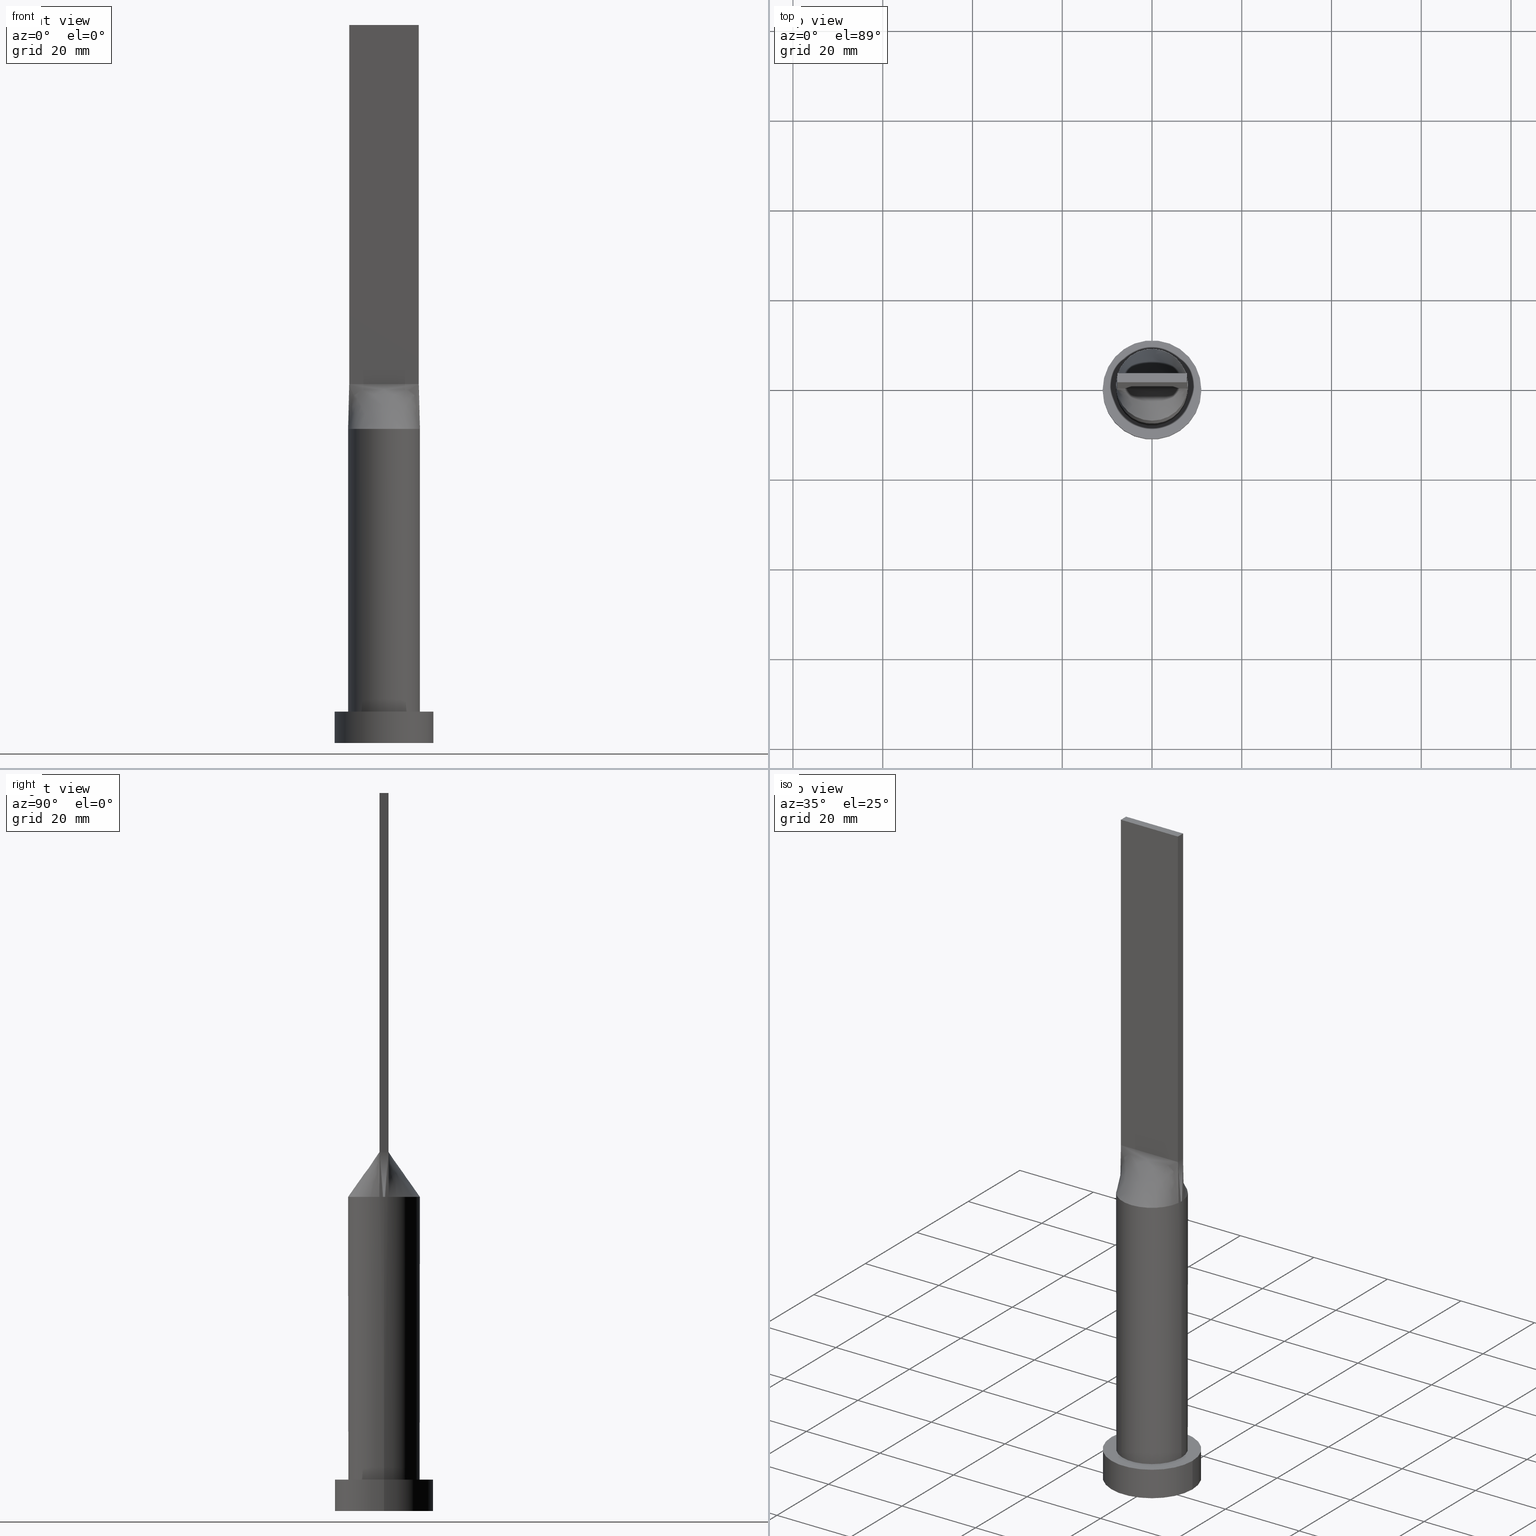
[diagram: canonical four-view strip — front | top / right | iso, engineering-drawing reading convention]
A machine part, canonical four-view strip (front | top / right | iso — engineering-drawing reading convention). The complete STEP part file that produces these views, byte-faithful:
ISO-10303-21;
HEADER;
FILE_DESCRIPTION (( 'STEP AP203' ),
    '1' );
FILE_NAME ('1e7d.STEP',
    '2023-02-13T08:33:03',
    ( '' ),
    ( '' ),
    'SwSTEP 2.0',
    'SolidWorks 2019',
    '' );
FILE_SCHEMA (( 'CONFIG_CONTROL_DESIGN' ));
ENDSEC;

DATA;
#1 = EDGE_LOOP ( 'NONE', ( #609, #271 ) ) ;
#2 = VERTEX_POINT ( 'NONE', #140 ) ;
#3 = CARTESIAN_POINT ( 'NONE',  ( 4.520833333333332149, -0.9999999999999995559, 79.99999999999998579 ) ) ;
#4 = CARTESIAN_POINT ( 'NONE',  ( 7.104166666666666963, 1.000000000000000000, 79.99999999999998579 ) ) ;
#5 = ORIENTED_EDGE ( 'NONE', *, *, #558, .T. ) ;
#6 = ORIENTED_EDGE ( 'NONE', *, *, #456, .T. ) ;
#7 = VERTEX_POINT ( 'NONE', #290 ) ;
#8 = CARTESIAN_POINT ( 'NONE',  ( 7.750000000000000000, -0.9999999999999997780, 80.00000000000000000 ) ) ;
#9 = CARTESIAN_POINT ( 'NONE',  ( -0.5861720261543129640, 7.999999999999998224, 69.99999999999998579 ) ) ;
#10 = DIRECTION ( 'NONE',  ( 6.994852725712931474E-17, 1.000000000000000000, -0.000000000000000000 ) ) ;
#11 = EDGE_CURVE ( 'NONE', #511, #586, #484, .T. ) ;
#12 = CARTESIAN_POINT ( 'NONE',  ( -7.849610172922081297, 1.679519592204999023, 70.00000000000000000 ) ) ;
#13 = DIRECTION ( 'NONE',  ( -0.000000000000000000, -0.000000000000000000, -1.000000000000000000 ) ) ;
#14 = DIRECTION ( 'NONE',  ( -1.000000000000000000, 0.000000000000000000, 0.000000000000000000 ) ) ;
#15 = CARTESIAN_POINT ( 'NONE',  ( 2.847317194822259534, 7.497028652483948008, 70.00000000000000000 ) ) ;
#16 = ORIENTED_EDGE ( 'NONE', *, *, #266, .F. ) ;
#17 = CARTESIAN_POINT ( 'NONE',  ( -7.750000000000000000, 1.000000000000000000, 160.0000000000000000 ) ) ;
#18 = CARTESIAN_POINT ( 'NONE',  ( 7.192469010134847629, 3.526369025759696907, 70.00000000000000000 ) ) ;
#19 = AXIS2_PLACEMENT_3D ( 'NONE', #444, #327, #467 ) ;
#20 = VERTEX_POINT ( 'NONE', #212 ) ;
#21 = CARTESIAN_POINT ( 'NONE',  ( -11.00000000000000000, 0.000000000000000000, 7.000000000000000000 ) ) ;
#22 = CARTESIAN_POINT ( 'NONE',  ( 6.994548530637815453, 3.908833842696238570, 70.00000000000002842 ) ) ;
#23 = EDGE_CURVE ( 'NONE', #250, #640, #312, .T. ) ;
#24 = PLANE ( 'NONE',  #99 ) ;
#25 = CARTESIAN_POINT ( 'NONE',  ( 7.750000000000000000, 0.6666666666666669627, 79.99999999999998579 ) ) ;
#26 = CYLINDRICAL_SURFACE ( 'NONE', #80, 11.00000000000000000 ) ;
#27 = AXIS2_PLACEMENT_3D ( 'NONE', #595, #336, #294 ) ;
#28 = ADVANCED_FACE ( 'NONE', ( #488 ), #26, .T. ) ;
#29 = LINE ( 'NONE', #265, #113 ) ;
#30 = FACE_OUTER_BOUND ( 'NONE', #422, .T. ) ;
#31 = AXIS2_PLACEMENT_3D ( 'NONE', #76, #222, #275 ) ;
#32 = APPLICATION_PROTOCOL_DEFINITION ( 'international standard', 'config_control_design', 1994, #162 ) ;
#33 = CARTESIAN_POINT ( 'NONE',  ( 7.750000000000000000, 1.000000000000000000, 160.0000000000000000 ) ) ;
#34 = ADVANCED_FACE ( 'NONE', ( #635 ), #202, .T. ) ;
#35 = DIRECTION ( 'NONE',  ( 1.000000000000000000, 0.000000000000000000, 0.000000000000000000 ) ) ;
#36 = CARTESIAN_POINT ( 'NONE',  ( -7.192469010134850294, -3.526369025759695131, 70.00000000000000000 ) ) ;
#37 = CC_DESIGN_PERSON_AND_ORGANIZATION_ASSIGNMENT ( #630, #141, ( #159 ) ) ;
#38 = DIRECTION ( 'NONE',  ( -0.000000000000000000, -0.000000000000000000, -1.000000000000000000 ) ) ;
#39 = VECTOR ( 'NONE', #87, 1000.000000000000000 ) ;
#40 = DIRECTION ( 'NONE',  ( -0.000000000000000000, -0.000000000000000000, -1.000000000000000000 ) ) ;
#41 = CIRCLE ( 'NONE', #279, 8.000000000000000000 ) ;
#42 = CALENDAR_DATE ( 2023, 13, 2 ) ;
#43 = CARTESIAN_POINT ( 'NONE',  ( -8.000000000000000000, 0.000000000000000000, 70.00000000000000000 ) ) ;
#44 = DATE_TIME_ROLE ( 'classification_date' ) ;
#45 = EDGE_CURVE ( 'NONE', #508, #52, #146, .T. ) ;
#46 = ORIENTED_EDGE ( 'NONE', *, *, #400, .T. ) ;
#47 = CARTESIAN_POINT ( 'NONE',  ( -7.675166908885238115, -2.399868494543664799, 69.99999999999998579 ) ) ;
#48 = DIRECTION ( 'NONE',  ( 1.000000000000000000, 0.000000000000000000, 0.000000000000000000 ) ) ;
#49 = ORIENTED_EDGE ( 'NONE', *, *, #139, .T. ) ;
#50 = AXIS2_PLACEMENT_3D ( 'NONE', #562, #13, #371 ) ;
#51 = CARTESIAN_POINT ( 'NONE',  ( -2.583333333333335258, -0.9999999999999988898, 80.00000000000000000 ) ) ;
#52 = VERTEX_POINT ( 'NONE', #310 ) ;
#53 = B_SPLINE_SURFACE_WITH_KNOTS ( 'NONE', 3, 1, ( 
 ( #179, #274 ),
 ( #323, #513 ),
 ( #516, #605 ),
 ( #74, #614 ),
 ( #568, #25 ),
 ( #71, #468 ) ),
 .UNSPECIFIED., .F., .F., .F.,
 ( 4, 2, 4 ),
 ( 2, 2 ),
 ( 0.000000000000000000, 0.5000000000000000000, 1.000000000000000000 ),
 ( 0.000000000000000000, 1.000000000000000000 ),
 .UNSPECIFIED. ) ;
#54 = CARTESIAN_POINT ( 'NONE',  ( -3.552083333333332593, 1.000000000000000000, 80.00000000000001421 ) ) ;
#55 = CARTESIAN_POINT ( 'NONE',  ( 5.489583333333333925, -0.9999999999999995559, 79.99999999999998579 ) ) ;
#56 = CARTESIAN_POINT ( 'NONE',  ( -3.862537548001455878, 7.028047916340264045, 70.00000000000000000 ) ) ;
#57 = EDGE_LOOP ( 'NONE', ( #264, #348, #554, #95 ) ) ;
#58 = B_SPLINE_SURFACE_WITH_KNOTS ( 'NONE', 3, 1, ( 
 ( #233, #432 ),
 ( #620, #185 ),
 ( #379, #569 ),
 ( #131, #332 ),
 ( #524, #83 ),
 ( #462, #337 ) ),
 .UNSPECIFIED., .F., .F., .F.,
 ( 4, 2, 4 ),
 ( 2, 2 ),
 ( 0.000000000000000000, 0.5000000000000000000, 1.000000000000000000 ),
 ( 0.000000000000000000, 1.000000000000000000 ),
 .UNSPECIFIED. ) ;
#59 = CARTESIAN_POINT ( 'NONE',  ( -2.847317194822263531, -7.497028652483947120, 69.99999999999998579 ) ) ;
#60 = CARTESIAN_POINT ( 'NONE',  ( 3.229166666666668295, 1.000000000000000000, 80.00000000000001421 ) ) ;
#61 = ORIENTED_EDGE ( 'NONE', *, *, #229, .F. ) ;
#62 = ADVANCED_FACE ( 'NONE', ( #249 ), #152, .T. ) ;
#63 = PLANE ( 'NONE',  #421 ) ;
#64 = CIRCLE ( 'NONE', #84, 11.00000000000000000 ) ;
#65 = CARTESIAN_POINT ( 'NONE',  ( -0.3229166666666646868, 1.000000000000000000, 79.99999999999998579 ) ) ;
#66 = LINE ( 'NONE', #219, #408 ) ;
#67 = CARTESIAN_POINT ( 'NONE',  ( 4.333237558274722900, 6.745559271922132893, 70.00000000000001421 ) ) ;
#68 = ORIENTED_EDGE ( 'NONE', *, *, #520, .F. ) ;
#69 = LINE ( 'NONE', #226, #626 ) ;
#70 = UNCERTAINTY_MEASURE_WITH_UNIT (LENGTH_MEASURE( 1.000000000000000082E-05 ), #527, 'distance_accuracy_value', 'NONE');
#71 = CARTESIAN_POINT ( 'NONE',  ( 7.934222933072200945, 1.023770701041573084, 70.00000000000000000 ) ) ;
#72 = ORIENTED_EDGE ( 'NONE', *, *, #392, .F. ) ;
#73 = DIRECTION ( 'NONE',  ( 0.000000000000000000, 0.000000000000000000, 1.000000000000000000 ) ) ;
#74 = CARTESIAN_POINT ( 'NONE',  ( 7.999729586091648414, 0.3426598302205475788, 70.00000000000000000 ) ) ;
#75 = EDGE_CURVE ( 'NONE', #536, #163, #268, .T. ) ;
#76 = CARTESIAN_POINT ( 'NONE',  ( 7.750000000000000000, -0.9999999999999997780, 160.0000000000000000 ) ) ;
#77 = CARTESIAN_POINT ( 'NONE',  ( -6.226863775955933100, 5.046530946333157353, 70.00000000000001421 ) ) ;
#78 = CARTESIAN_POINT ( 'NONE',  ( -7.934264564332944580, 1.023776086464161406, 70.00000000000000000 ) ) ;
#79 = DIRECTION ( 'NONE',  ( 0.000000000000000000, -1.000000000000000000, 0.000000000000000000 ) ) ;
#80 = AXIS2_PLACEMENT_3D ( 'NONE', #377, #173, #14 ) ;
#81 = DATE_AND_TIME ( #523, #397 ) ;
#82 = ADVANCED_FACE ( 'NONE', ( #522 ), #53, .T. ) ;
#83 = CARTESIAN_POINT ( 'NONE',  ( -7.750000000000000000, -0.6666666666666652974, 79.99999999999998579 ) ) ;
#84 = AXIS2_PLACEMENT_3D ( 'NONE', #189, #533, #632 ) ;
#85 = COORDINATED_UNIVERSAL_TIME_OFFSET ( 1, 0, .AHEAD. ) ;
#86 = CARTESIAN_POINT ( 'NONE',  ( 7.750000000000000000, 1.000000000000000000, 80.00000000000000000 ) ) ;
#87 = DIRECTION ( 'NONE',  ( -0.000000000000000000, -0.000000000000000000, -1.000000000000000000 ) ) ;
#88 = LINE ( 'NONE', #287, #506 ) ;
#89 = EDGE_CURVE ( 'NONE', #52, #486, #125, .T. ) ;
#90 = PERSON_AND_ORGANIZATION ( #151, #507 ) ;
#91 = CARTESIAN_POINT ( 'NONE',  ( -7.934222933072202721, -1.023770701041571973, 70.00000000000000000 ) ) ;
#92 = APPROVAL ( #394, 'NEUR�EN�' ) ;
#93 = DIRECTION ( 'NONE',  ( 0.000000000000000000, 0.000000000000000000, 1.000000000000000000 ) ) ;
#94 = CARTESIAN_POINT ( 'NONE',  ( 2.302877821226934074, -7.683241396761609998, 70.00000000000001421 ) ) ;
#95 = ORIENTED_EDGE ( 'NONE', *, *, #503, .T. ) ;
#96 = EDGE_CURVE ( 'NONE', #640, #596, #499, .T. ) ;
#97 = CARTESIAN_POINT ( 'NONE',  ( 4.333237558274721124, -6.745559271922137334, 70.00000000000001421 ) ) ;
#98 = CARTESIAN_POINT ( 'NONE',  ( -2.302877821226935851, 7.683241396761610886, 70.00000000000001421 ) ) ;
#99 = AXIS2_PLACEMENT_3D ( 'NONE', #515, #73, #428 ) ;
#100 = CARTESIAN_POINT ( 'NONE',  ( -5.562660223239391577, -5.770452176164420521, 70.00000000000004263 ) ) ;
#101 = CARTESIAN_POINT ( 'NONE',  ( 7.849610172922079521, 1.679519592204998801, 70.00000000000000000 ) ) ;
#102 = ORIENTED_EDGE ( 'NONE', *, *, #392, .T. ) ;
#103 = CARTESIAN_POINT ( 'NONE',  ( 0.5861720261543107435, -8.000000000000001776, 70.00000000000004263 ) ) ;
#104 = CARTESIAN_POINT ( 'NONE',  ( 6.226863775955932212, 5.046530946333158241, 70.00000000000002842 ) ) ;
#105 = ADVANCED_FACE ( 'NONE', ( #128 ), #612, .F. ) ;
#106 = B_SPLINE_SURFACE_WITH_KNOTS ( 'NONE', 3, 1, ( 
 ( #91, #479 ),
 ( #487, #236 ),
 ( #47, #381 ),
 ( #36, #237 ),
 ( #435, #251 ),
 ( #355, #498 ),
 ( #601, #398 ),
 ( #100, #345 ),
 ( #406, #597 ),
 ( #309, #51 ),
 ( #261, #210 ),
 ( #59, #200 ),
 ( #296, #637 ),
 ( #539, #585 ),
 ( #593, #447 ),
 ( #103, #546 ),
 ( #154, #313 ),
 ( #94, #495 ),
 ( #589, #149 ),
 ( #160, #165 ),
 ( #97, #300 ),
 ( #541, #491 ),
 ( #248, #349 ),
 ( #246, #410 ),
 ( #449, #3 ),
 ( #255, #168 ),
 ( #305, #55 ),
 ( #352, #639 ),
 ( #452, #549 ),
 ( #401, #8 ) ),
 .UNSPECIFIED., .F., .F., .F.,
 ( 4, 2, 2, 2, 2, 2, 2, 2, 2, 2, 2, 2, 2, 2, 4 ),
 ( 2, 2 ),
 ( 0.000000000000000000, 0.1250000000000000555, 0.1875000000000000555, 0.2500000000000000555, 0.3125000000000000000, 0.3750000000000000000, 0.4374999999999999445, 0.4999999999999999445, 0.5624999999999998890, 0.6249999999999998890, 0.6875000000000000000, 0.7500000000000000000, 0.8125000000000000000, 0.8750000000000000000, 1.000000000000000000 ),
 ( 0.000000000000000000, 1.000000000000000000 ),
 .UNSPECIFIED. ) ;
#107 = CARTESIAN_POINT ( 'NONE',  ( 7.750000000000000000, 1.000000000000000000, 160.0000000000000000 ) ) ;
#108 = CARTESIAN_POINT ( 'NONE',  ( -4.520833333333332149, 1.000000000000000000, 80.00000000000001421 ) ) ;
#109 = CC_DESIGN_PERSON_AND_ORGANIZATION_ASSIGNMENT ( #339, #531, ( #159 ) ) ;
#110 = ORIENTED_EDGE ( 'NONE', *, *, #441, .F. ) ;
#111 = ORIENTED_EDGE ( 'NONE', *, *, #631, .F. ) ;
#112 = FACE_OUTER_BOUND ( 'NONE', #136, .T. ) ;
#113 = VECTOR ( 'NONE', #512, 1000.000000000000114 ) ;
#114 = CARTESIAN_POINT ( 'NONE',  ( 0.000000000000000000, 0.000000000000000000, 7.000000000000000000 ) ) ;
#115 = ORIENTED_EDGE ( 'NONE', *, *, #283, .T. ) ;
#116 = CARTESIAN_POINT ( 'NONE',  ( -7.750000000000000000, -0.9999999999999986677, 160.0000000000000000 ) ) ;
#117 = CARTESIAN_POINT ( 'NONE',  ( 7.934252830235720033, 1.023774570959714802, 70.00000000000000000 ) ) ;
#118 = ORIENTED_EDGE ( 'NONE', *, *, #441, .T. ) ;
#119 = ORIENTED_EDGE ( 'NONE', *, *, #45, .F. ) ;
#120 = LINE ( 'NONE', #184, #475 ) ;
#121 = CARTESIAN_POINT ( 'NONE',  ( -2.302877821226935851, 7.683241396761610886, 70.00000000000001421 ) ) ;
#122 = CIRCLE ( 'NONE', #514, 8.000000000000000000 ) ;
#123 = CARTESIAN_POINT ( 'NONE',  ( -11.00000000000000000, 0.000000000000000000, 0.000000000000000000 ) ) ;
#124 = CIRCLE ( 'NONE', #316, 11.00000000000000000 ) ;
#125 = LINE ( 'NONE', #181, #471 ) ;
#126 = PRODUCT_DEFINITION ( 'NEZN�M�', '', #159, #419 ) ;
#127 = DIRECTION ( 'NONE',  ( -0.000000000000000000, -0.000000000000000000, -1.000000000000000000 ) ) ;
#128 = FACE_OUTER_BOUND ( 'NONE', #191, .T. ) ;
#129 = ADVANCED_FACE ( 'NONE', ( #30 ), #58, .T. ) ;
#130 = PERSON_AND_ORGANIZATION_ROLE ( 'design_owner' ) ;
#131 = CARTESIAN_POINT ( 'NONE',  ( -7.999729586091648414, -0.3426598302205468571, 70.00000000000000000 ) ) ;
#132 = APPROVAL_ROLE ( '' ) ;
#133 = CARTESIAN_POINT ( 'NONE',  ( 0.000000000000000000, 0.000000000000000000, 70.00000000000000000 ) ) ;
#134 = PERSON_AND_ORGANIZATION ( #151, #507 ) ;
#135 = CARTESIAN_POINT ( 'NONE',  ( 0.000000000000000000, 0.000000000000000000, 7.000000000000000000 ) ) ;
#136 = EDGE_LOOP ( 'NONE', ( #308, #404, #204, #221 ) ) ;
#137 = CARTESIAN_POINT ( 'NONE',  ( -8.000000000000000000, 0.000000000000000000, 7.000000000000000000 ) ) ;
#138 = DIRECTION ( 'NONE',  ( 0.000000000000000000, 0.000000000000000000, 1.000000000000000000 ) ) ;
#139 = EDGE_CURVE ( 'NONE', #586, #508, #575, .T. ) ;
#140 = CARTESIAN_POINT ( 'NONE',  ( 8.000000000000000000, 9.797174393178825657E-16, 7.000000000000000000 ) ) ;
#141 = PERSON_AND_ORGANIZATION_ROLE ( 'creator' ) ;
#142 = DIRECTION ( 'NONE',  ( 1.000000000000000000, 0.000000000000000000, 0.000000000000000000 ) ) ;
#143 = AXIS2_PLACEMENT_3D ( 'NONE', #272, #269, #423 ) ;
#144 =( GEOMETRIC_REPRESENTATION_CONTEXT ( 3 ) GLOBAL_UNCERTAINTY_ASSIGNED_CONTEXT ( ( #70 ) ) GLOBAL_UNIT_ASSIGNED_CONTEXT ( ( #527, #440, #476 ) ) REPRESENTATION_CONTEXT ( 'NONE', 'WORKASPACE' ) );
#145 = CALENDAR_DATE ( 2023, 13, 2 ) ;
#146 = LINE ( 'NONE', #388, #347 ) ;
#147 = ORIENTED_EDGE ( 'NONE', *, *, #75, .F. ) ;
#148 = DIRECTION ( 'NONE',  ( -0.01841911599500831165, -0.002376660128388051550, 0.9998275289531671772 ) ) ;
#149 = CARTESIAN_POINT ( 'NONE',  ( 1.614583333333330373, -0.9999999999999991118, 80.00000000000000000 ) ) ;
#150 = CARTESIAN_POINT ( 'NONE',  ( 2.847317194822259534, 7.497028652483948008, 70.00000000000000000 ) ) ;
#151 = PERSON ( 'NEUR�EN�', 'NEUR�EN�', 'NEUR�EN�', ('NEUR�EN�'), ('NEUR�EN�'), ('NEUR�EN�') ) ;
#152 = B_SPLINE_SURFACE_WITH_KNOTS ( 'NONE', 3, 1, ( 
 ( #510, #170 ),
 ( #101, #4 ),
 ( #256, #602 ),
 ( #599, #448 ),
 ( #493, #412 ),
 ( #203, #252 ),
 ( #104, #399 ),
 ( #306, #587 ),
 ( #500, #60 ),
 ( #67, #403 ),
 ( #544, #453 ),
 ( #150, #450 ),
 ( #211, #407 ),
 ( #641, #505 ),
 ( #346, #594 ),
 ( #9, #65 ),
 ( #161, #496 ),
 ( #98, #353 ),
 ( #547, #638 ),
 ( #56, #301 ),
 ( #591, #320 ),
 ( #361, #214 ),
 ( #540, #54 ),
 ( #166, #356 ),
 ( #550, #108 ),
 ( #314, #556 ),
 ( #207, #262 ),
 ( #156, #458 ),
 ( #12, #216 ),
 ( #350, #415 ) ),
 .UNSPECIFIED., .F., .F., .F.,
 ( 4, 2, 2, 2, 2, 2, 2, 2, 2, 2, 2, 2, 2, 2, 4 ),
 ( 2, 2 ),
 ( 0.000000000000000000, 0.1250000000000000000, 0.1875000000000000000, 0.2500000000000000000, 0.3125000000000000000, 0.3750000000000000000, 0.4375000000000000000, 0.5000000000000000000, 0.5625000000000000000, 0.6250000000000000000, 0.6875000000000000000, 0.7500000000000000000, 0.8125000000000000000, 0.8750000000000000000, 1.000000000000000000 ),
 ( 0.000000000000000000, 1.000000000000000000 ),
 .UNSPECIFIED. ) ;
#153 = EDGE_CURVE ( 'NONE', #20, #250, #169, .T. ) ;
#154 = CARTESIAN_POINT ( 'NONE',  ( 1.172177046651855292, -7.934824862069280726, 70.00000000000002842 ) ) ;
#155 = AXIS2_PLACEMENT_3D ( 'NONE', #387, #625, #442 ) ;
#156 = CARTESIAN_POINT ( 'NONE',  ( -7.675166908885236339, 2.399868494543667907, 70.00000000000000000 ) ) ;
#157 = AXIS2_PLACEMENT_3D ( 'NONE', #480, #40, #526 ) ;
#158 = ORIENTED_EDGE ( 'NONE', *, *, #416, .T. ) ;
#159 = PRODUCT_DEFINITION_FORMATION_WITH_SPECIFIED_SOURCE ( 'LIBOVOLN�', '', #494, .NOT_KNOWN. ) ;
#160 = CARTESIAN_POINT ( 'NONE',  ( 3.862537548001456322, -7.028047916340264045, 70.00000000000001421 ) ) ;
#161 = CARTESIAN_POINT ( 'NONE',  ( -1.172177046651856402, 7.934824862069282503, 70.00000000000002842 ) ) ;
#162 = APPLICATION_CONTEXT ( 'configuration controlled 3d designs of mechanical parts and assemblies' ) ;
#163 = VERTEX_POINT ( 'NONE', #199 ) ;
#164 = EDGE_LOOP ( 'NONE', ( #110, #459 ) ) ;
#165 = CARTESIAN_POINT ( 'NONE',  ( 2.260416666666664298, -0.9999999999999991118, 80.00000000000000000 ) ) ;
#166 = CARTESIAN_POINT ( 'NONE',  ( -6.226863775955933100, 5.046530946333157353, 70.00000000000001421 ) ) ;
#167 = EDGE_CURVE ( 'NONE', #596, #7, #122, .T. ) ;
#168 = CARTESIAN_POINT ( 'NONE',  ( 5.166666666666666963, -0.9999999999999995559, 79.99999999999998579 ) ) ;
#169 = CIRCLE ( 'NONE', #155, 8.000000000000000000 ) ;
#170 = CARTESIAN_POINT ( 'NONE',  ( 7.750000000000000000, 1.000000000000000000, 80.00000000000000000 ) ) ;
#171 = ORIENTED_EDGE ( 'NONE', *, *, #139, .F. ) ;
#172 = CARTESIAN_POINT ( 'NONE',  ( -11.00000000000000000, 0.000000000000000000, 7.000000000000000000 ) ) ;
#173 = DIRECTION ( 'NONE',  ( -0.000000000000000000, -0.000000000000000000, -1.000000000000000000 ) ) ;
#174 = CARTESIAN_POINT ( 'NONE',  ( 5.562660223239392465, 5.770452176164421410, 70.00000000000001421 ) ) ;
#175 = ORIENTED_EDGE ( 'NONE', *, *, #416, .F. ) ;
#176 = EDGE_CURVE ( 'NONE', #7, #610, #280, .T. ) ;
#177 = ORIENTED_EDGE ( 'NONE', *, *, #558, .F. ) ;
#178 = CARTESIAN_POINT ( 'NONE',  ( 7.750000000000000000, -0.9999999999999997780, 160.0000000000000000 ) ) ;
#179 = CARTESIAN_POINT ( 'NONE',  ( 7.934222933072200945, -1.023770701041574860, 70.00000000000000000 ) ) ;
#180 = FACE_OUTER_BOUND ( 'NONE', #451, .T. ) ;
#181 = CARTESIAN_POINT ( 'NONE',  ( -7.750000000000000000, 1.000000000000000000, 80.00000000000000000 ) ) ;
#182 = DIRECTION ( 'NONE',  ( 0.000000000000000000, 1.000000000000000000, 0.000000000000000000 ) ) ;
#183 = CARTESIAN_POINT ( 'NONE',  ( -5.562660223239390689, 5.770452176164420521, 70.00000000000002842 ) ) ;
#184 = CARTESIAN_POINT ( 'NONE',  ( 7.842111466536100473, -1.011885350520787430, 75.00000000000001421 ) ) ;
#185 = CARTESIAN_POINT ( 'NONE',  ( -7.750000000000000000, 0.6666666666666670737, 79.99999999999998579 ) ) ;
#186 = CC_DESIGN_DATE_AND_TIME_ASSIGNMENT ( #292, #44, ( #234 ) ) ;
#187 = CALENDAR_DATE ( 2023, 13, 2 ) ;
#188 = ADVANCED_BREP_SHAPE_REPRESENTATION ( '1e7d', ( #502, #260 ), #144 ) ;
#189 = CARTESIAN_POINT ( 'NONE',  ( 0.000000000000000000, 0.000000000000000000, 7.000000000000000000 ) ) ;
#190 = CARTESIAN_POINT ( 'NONE',  ( -7.750000000000000000, -0.9999999999999986677, 80.00000000000000000 ) ) ;
#191 = EDGE_LOOP ( 'NONE', ( #363, #311, #175, #297 ) ) ;
#192 = APPROVAL_DATE_TIME ( #331, #517 ) ;
#193 = CARTESIAN_POINT ( 'NONE',  ( 0.000000000000000000, 0.000000000000000000, 7.000000000000000000 ) ) ;
#194 = COORDINATED_UNIVERSAL_TIME_OFFSET ( 1, 0, .AHEAD. ) ;
#195 = APPROVAL ( #390, 'NEUR�EN�' ) ;
#196 = FACE_OUTER_BOUND ( 'NONE', #1, .T. ) ;
#197 = ORIENTED_EDGE ( 'NONE', *, *, #295, .T. ) ;
#198 = APPROVAL_ROLE ( '' ) ;
#199 = CARTESIAN_POINT ( 'NONE',  ( 11.00000000000000000, 1.347111479062088405E-15, 7.000000000000000000 ) ) ;
#200 = CARTESIAN_POINT ( 'NONE',  ( -1.614583333333335480, -0.9999999999999991118, 80.00000000000001421 ) ) ;
#201 = ORIENTED_EDGE ( 'NONE', *, *, #240, .T. ) ;
#202 = PLANE ( 'NONE',  #553 ) ;
#203 = CARTESIAN_POINT ( 'NONE',  ( 6.511821874825409751, 4.668925682402791821, 70.00000000000001421 ) ) ;
#204 = ORIENTED_EDGE ( 'NONE', *, *, #295, .F. ) ;
#205 = CARTESIAN_POINT ( 'NONE',  ( -7.750000000000000000, -0.9999999999999986677, 160.0000000000000000 ) ) ;
#206 = EDGE_LOOP ( 'NONE', ( #324, #6, #119, #16 ) ) ;
#207 = CARTESIAN_POINT ( 'NONE',  ( -7.192469010134845853, 3.526369025759696019, 69.99999999999998579 ) ) ;
#208 = EDGE_LOOP ( 'NONE', ( #49, #385, #177, #354 ) ) ;
#209 = ORIENTED_EDGE ( 'NONE', *, *, #456, .F. ) ;
#210 = CARTESIAN_POINT ( 'NONE',  ( -2.260416666666668295, -0.9999999999999991118, 80.00000000000001421 ) ) ;
#211 = CARTESIAN_POINT ( 'NONE',  ( 2.302877821226935406, 7.683241396761612663, 70.00000000000002842 ) ) ;
#212 = CARTESIAN_POINT ( 'NONE',  ( 7.934268799922667981, -1.023776637617846319, 70.00000000000000000 ) ) ;
#213 = LINE ( 'NONE', #107, #259 ) ;
#214 = CARTESIAN_POINT ( 'NONE',  ( -3.229166666666665186, 1.000000000000000000, 80.00000000000001421 ) ) ;
#215 = DIRECTION ( 'NONE',  ( -1.000000000000000000, 6.994852725712931474E-17, 0.000000000000000000 ) ) ;
#216 = CARTESIAN_POINT ( 'NONE',  ( -7.104166666666667851, 1.000000000000000000, 80.00000000000001421 ) ) ;
#217 = DIRECTION ( 'NONE',  ( -0.000000000000000000, -0.000000000000000000, -1.000000000000000000 ) ) ;
#218 = VECTOR ( 'NONE', #528, 1000.000000000000000 ) ;
#219 = CARTESIAN_POINT ( 'NONE',  ( -7.842111466536100473, 1.011885350520786098, 75.00000000000001421 ) ) ;
#220 = CARTESIAN_POINT ( 'NONE',  ( -0.5861720261543129640, 7.999999999999998224, 69.99999999999998579 ) ) ;
#221 = ORIENTED_EDGE ( 'NONE', *, *, #598, .T. ) ;
#222 = DIRECTION ( 'NONE',  ( -1.000000000000000000, 0.000000000000000000, 0.000000000000000000 ) ) ;
#223 = VECTOR ( 'NONE', #182, 1000.000000000000000 ) ;
#224 = CARTESIAN_POINT ( 'NONE',  ( 6.511821874825409751, 4.668925682402791821, 70.00000000000001421 ) ) ;
#225 = EDGE_LOOP ( 'NONE', ( #111, #147, #315, #263 ) ) ;
#226 = CARTESIAN_POINT ( 'NONE',  ( 7.750000000000000000, 1.000000000000000000, 160.0000000000000000 ) ) ;
#227 = CARTESIAN_POINT ( 'NONE',  ( 2.302877821226935406, 7.683241396761612663, 70.00000000000002842 ) ) ;
#228 = PLANE ( 'NONE',  #31 ) ;
#229 = EDGE_CURVE ( 'NONE', #250, #2, #344, .T. ) ;
#230 = APPLICATION_CONTEXT ( 'configuration controlled 3d designs of mechanical parts and assemblies' ) ;
#231 = CARTESIAN_POINT ( 'NONE',  ( 4.333237558274722900, 6.745559271922132893, 70.00000000000001421 ) ) ;
#232 = DIRECTION ( 'NONE',  ( -0.01841911599500831165, 0.002376660128388246706, 0.9998275289531671772 ) ) ;
#233 = CARTESIAN_POINT ( 'NONE',  ( -7.934222933072200945, 1.023770701041573972, 70.00000000000000000 ) ) ;
#234 = SECURITY_CLASSIFICATION ( '', '', #235 ) ;
#235 = SECURITY_CLASSIFICATION_LEVEL ( 'unclassified' ) ;
#236 = CARTESIAN_POINT ( 'NONE',  ( -7.104166666666666963, -0.9999999999999986677, 80.00000000000000000 ) ) ;
#237 = CARTESIAN_POINT ( 'NONE',  ( -5.489583333333333037, -0.9999999999999986677, 79.99999999999998579 ) ) ;
#238 = CARTESIAN_POINT ( 'NONE',  ( 7.934252830235720033, 1.023774570959714802, 70.00000000000000000 ) ) ;
#239 = DIRECTION ( 'NONE',  ( 1.000000000000000000, 0.000000000000000000, 0.000000000000000000 ) ) ;
#240 = EDGE_CURVE ( 'NONE', #486, #586, #243, .T. ) ;
#241 = DATE_AND_TIME ( #42, #351 ) ;
#242 = DIRECTION ( 'NONE',  ( -1.000000000000000000, -0.000000000000000000, -0.000000000000000000 ) ) ;
#243 = LINE ( 'NONE', #190, #298 ) ;
#244 = PERSON_AND_ORGANIZATION ( #151, #507 ) ;
#245 = DIRECTION ( 'NONE',  ( -0.000000000000000000, 1.000000000000000000, -0.000000000000000000 ) ) ;
#246 = CARTESIAN_POINT ( 'NONE',  ( 6.226863775955932212, -5.046530946333159129, 70.00000000000001421 ) ) ;
#247 = CC_DESIGN_PERSON_AND_ORGANIZATION_ASSIGNMENT ( #90, #621, ( #234 ) ) ;
#248 = CARTESIAN_POINT ( 'NONE',  ( 5.562660223239390689, -5.770452176164421410, 70.00000000000002842 ) ) ;
#249 = FACE_OUTER_BOUND ( 'NONE', #206, .T. ) ;
#250 = VERTEX_POINT ( 'NONE', #529 ) ;
#251 = CARTESIAN_POINT ( 'NONE',  ( -5.166666666666666963, -0.9999999999999986677, 79.99999999999998579 ) ) ;
#252 = CARTESIAN_POINT ( 'NONE',  ( 4.520833333333334814, 1.000000000000000000, 80.00000000000001421 ) ) ;
#253 = ADVANCED_FACE ( 'NONE', ( #340 ), #285, .T. ) ;
#254 = ORIENTED_EDGE ( 'NONE', *, *, #229, .T. ) ;
#255 = CARTESIAN_POINT ( 'NONE',  ( 6.994548530637813677, -3.908833842696238570, 70.00000000000000000 ) ) ;
#256 = CARTESIAN_POINT ( 'NONE',  ( 7.675166908885234562, 2.399868494543665243, 69.99999999999997158 ) ) ;
#257 = EDGE_LOOP ( 'NONE', ( #357, #409 ) ) ;
#258 = ORIENTED_EDGE ( 'NONE', *, *, #176, .T. ) ;
#259 = VECTOR ( 'NONE', #504, 1000.000000000000000 ) ;
#260 = AXIS2_PLACEMENT_3D ( 'NONE', #378, #281, #35 ) ;
#261 = CARTESIAN_POINT ( 'NONE',  ( -3.862537548001458987, -7.028047916340261381, 70.00000000000000000 ) ) ;
#262 = CARTESIAN_POINT ( 'NONE',  ( -5.489583333333333925, 1.000000000000000000, 80.00000000000001421 ) ) ;
#263 = ORIENTED_EDGE ( 'NONE', *, *, #438, .T. ) ;
#264 = ORIENTED_EDGE ( 'NONE', *, *, #380, .T. ) ;
#265 = CARTESIAN_POINT ( 'NONE',  ( -7.842111466536100473, -1.011885350520785209, 75.00000000000001421 ) ) ;
#266 = EDGE_CURVE ( 'NONE', #640, #508, #439, .T. ) ;
#267 = DIRECTION ( 'NONE',  ( 0.000000000000000000, 0.000000000000000000, 1.000000000000000000 ) ) ;
#268 = CIRCLE ( 'NONE', #359, 11.00000000000000000 ) ;
#269 = DIRECTION ( 'NONE',  ( 1.000000000000000000, 0.000000000000000000, -0.000000000000000000 ) ) ;
#270 = CARTESIAN_POINT ( 'NONE',  ( 7.849610172922079521, 1.679519592204998801, 70.00000000000000000 ) ) ;
#271 = ORIENTED_EDGE ( 'NONE', *, *, #307, .T. ) ;
#272 = CARTESIAN_POINT ( 'NONE',  ( -7.750000000000000000, 1.000000000000000000, 160.0000000000000000 ) ) ;
#273 = CC_DESIGN_APPROVAL ( #92, ( #234 ) ) ;
#274 = CARTESIAN_POINT ( 'NONE',  ( 7.750000000000000000, -1.000000000000000000, 80.00000000000000000 ) ) ;
#275 = DIRECTION ( 'NONE',  ( 0.000000000000000000, 0.000000000000000000, 1.000000000000000000 ) ) ;
#276 = DIRECTION ( 'NONE',  ( 1.000000000000000000, 0.000000000000000000, 0.000000000000000000 ) ) ;
#277 = LINE ( 'NONE', #472, #542 ) ;
#278 = CARTESIAN_POINT ( 'NONE',  ( -5.183259239191613688, 6.116644610143057825, 69.99999999999998579 ) ) ;
#279 = AXIS2_PLACEMENT_3D ( 'NONE', #135, #138, #239 ) ;
#280 = LINE ( 'NONE', #43, #39 ) ;
#281 = DIRECTION ( 'NONE',  ( 0.000000000000000000, 0.000000000000000000, 1.000000000000000000 ) ) ;
#282 = FACE_OUTER_BOUND ( 'NONE', #57, .T. ) ;
#283 = EDGE_CURVE ( 'NONE', #2, #610, #41, .T. ) ;
#284 = PERSON_AND_ORGANIZATION ( #151, #507 ) ;
#285 = CYLINDRICAL_SURFACE ( 'NONE', #157, 8.000000000000000000 ) ;
#286 = CALENDAR_DATE ( 2023, 13, 2 ) ;
#287 = CARTESIAN_POINT ( 'NONE',  ( -7.750000000000000000, -0.9999999999999986677, 160.0000000000000000 ) ) ;
#288 = AXIS2_PLACEMENT_3D ( 'NONE', #577, #434, #579 ) ;
#289 = SHAPE_DEFINITION_REPRESENTATION ( #402, #188 ) ;
#290 = CARTESIAN_POINT ( 'NONE',  ( -7.999864793045825984, 2.648518981350782698E-14, 70.00000000000000000 ) ) ;
#291 = LOCAL_TIME ( 9, 33, 3.000000000000000000, #525 ) ;
#292 = DATE_AND_TIME ( #187, #291 ) ;
#293 = DIRECTION ( 'NONE',  ( 1.000000000000000000, 0.000000000000000000, -0.000000000000000000 ) ) ;
#294 = DIRECTION ( 'NONE',  ( 1.000000000000000000, 0.000000000000000000, 0.000000000000000000 ) ) ;
#295 = EDGE_CURVE ( 'NONE', #497, #417, #537, .T. ) ;
#296 = CARTESIAN_POINT ( 'NONE',  ( -2.302877821226939403, -7.683241396761614439, 70.00000000000002842 ) ) ;
#297 = ORIENTED_EDGE ( 'NONE', *, *, #551, .T. ) ;
#298 = VECTOR ( 'NONE', #384, 1000.000000000000000 ) ;
#299 = ORIENTED_EDGE ( 'NONE', *, *, #380, .F. ) ;
#300 = CARTESIAN_POINT ( 'NONE',  ( 2.583333333333331705, -0.9999999999999991118, 79.99999999999998579 ) ) ;
#301 = CARTESIAN_POINT ( 'NONE',  ( -2.260416666666664742, 1.000000000000000000, 79.99999999999998579 ) ) ;
#302 = VERTEX_POINT ( 'NONE', #33 ) ;
#303 = EDGE_LOOP ( 'NONE', ( #463, #321, #46, #588 ) ) ;
#304 = AXIS2_PLACEMENT_3D ( 'NONE', #477, #483, #142 ) ;
#305 = CARTESIAN_POINT ( 'NONE',  ( 7.192469010134844964, -3.526369025759696907, 69.99999999999998579 ) ) ;
#306 = CARTESIAN_POINT ( 'NONE',  ( 5.562660223239392465, 5.770452176164421410, 70.00000000000001421 ) ) ;
#307 = EDGE_CURVE ( 'NONE', #163, #536, #64, .T. ) ;
#308 = ORIENTED_EDGE ( 'NONE', *, *, #89, .T. ) ;
#309 = CARTESIAN_POINT ( 'NONE',  ( -4.333237558274724677, -6.745559271922134670, 70.00000000000001421 ) ) ;
#310 = CARTESIAN_POINT ( 'NONE',  ( -7.750000000000000000, 1.000000000000000000, 80.00000000000000000 ) ) ;
#311 = ORIENTED_EDGE ( 'NONE', *, *, #598, .F. ) ;
#312 = CIRCLE ( 'NONE', #27, 8.000000000000000000 ) ;
#313 = CARTESIAN_POINT ( 'NONE',  ( 0.6458333333333304838, -0.9999999999999991118, 80.00000000000000000 ) ) ;
#314 = CARTESIAN_POINT ( 'NONE',  ( -6.994548530637814565, 3.908833842696238570, 70.00000000000001421 ) ) ;
#315 = ORIENTED_EDGE ( 'NONE', *, *, #574, .T. ) ;
#316 = AXIS2_PLACEMENT_3D ( 'NONE', #360, #490, #48 ) ;
#317 = ORIENTED_EDGE ( 'NONE', *, *, #503, .F. ) ;
#318 = EDGE_LOOP ( 'NONE', ( #201, #600, #72, #413 ) ) ;
#319 = CYLINDRICAL_SURFACE ( 'NONE', #396, 11.00000000000000000 ) ;
#320 = CARTESIAN_POINT ( 'NONE',  ( -2.583333333333331705, 1.000000000000000000, 80.00000000000000000 ) ) ;
#321 = ORIENTED_EDGE ( 'NONE', *, *, #631, .T. ) ;
#322 = FACE_OUTER_BOUND ( 'NONE', #225, .T. ) ;
#323 = CARTESIAN_POINT ( 'NONE',  ( 7.977894035085165036, -0.6853196604410977111, 70.00000000000000000 ) ) ;
#324 = ORIENTED_EDGE ( 'NONE', *, *, #96, .T. ) ;
#325 = FACE_OUTER_BOUND ( 'NONE', #257, .T. ) ;
#326 = CARTESIAN_POINT ( 'NONE',  ( -1.172177046651856402, 7.934824862069282503, 70.00000000000002842 ) ) ;
#327 = DIRECTION ( 'NONE',  ( 0.000000000000000000, 0.000000000000000000, 1.000000000000000000 ) ) ;
#328 = CARTESIAN_POINT ( 'NONE',  ( 0.5861720261543130750, 7.999999999999998224, 70.00000000000001421 ) ) ;
#329 = LINE ( 'NONE', #116, #383 ) ;
#330 = CARTESIAN_POINT ( 'NONE',  ( 7.750000000000000000, 1.000000000000000000, 160.0000000000000000 ) ) ;
#331 = DATE_AND_TIME ( #286, #636 ) ;
#332 = CARTESIAN_POINT ( 'NONE',  ( -7.750000000000000000, -0.3333333333333321491, 79.99999999999998579 ) ) ;
#333 = APPROVAL_DATE_TIME ( #241, #195 ) ;
#334 = DIRECTION ( 'NONE',  ( 0.000000000000000000, 0.000000000000000000, 1.000000000000000000 ) ) ;
#335 = DIRECTION ( 'NONE',  ( 1.000000000000000000, 0.000000000000000000, 0.000000000000000000 ) ) ;
#336 = DIRECTION ( 'NONE',  ( 0.000000000000000000, 0.000000000000000000, 1.000000000000000000 ) ) ;
#337 = CARTESIAN_POINT ( 'NONE',  ( -7.750000000000000000, -0.9999999999999986677, 80.00000000000000000 ) ) ;
#338 = ORIENTED_EDGE ( 'NONE', *, *, #266, .T. ) ;
#339 = PERSON_AND_ORGANIZATION ( #151, #507 ) ;
#340 = FACE_OUTER_BOUND ( 'NONE', #501, .T. ) ;
#341 = AXIS2_PLACEMENT_3D ( 'NONE', #193, #395, #293 ) ;
#342 = EDGE_LOOP ( 'NONE', ( #358, #623, #338, #171, #455 ) ) ;
#343 = DATE_AND_TIME ( #145, #566 ) ;
#344 = LINE ( 'NONE', #622, #218 ) ;
#345 = CARTESIAN_POINT ( 'NONE',  ( -3.552083333333333481, -0.9999999999999986677, 79.99999999999998579 ) ) ;
#346 = CARTESIAN_POINT ( 'NONE',  ( 0.5861720261543130750, 7.999999999999998224, 70.00000000000001421 ) ) ;
#347 = VECTOR ( 'NONE', #242, 1000.000000000000000 ) ;
#348 = ORIENTED_EDGE ( 'NONE', *, *, #538, .T. ) ;
#349 = CARTESIAN_POINT ( 'NONE',  ( 3.552083333333333037, -0.9999999999999993339, 79.99999999999998579 ) ) ;
#350 = CARTESIAN_POINT ( 'NONE',  ( -7.934222933072200945, 1.023770701041572195, 70.00000000000000000 ) ) ;
#351 = LOCAL_TIME ( 9, 33, 3.000000000000000000, #485 ) ;
#352 = CARTESIAN_POINT ( 'NONE',  ( 7.675166908885234562, -2.399868494543666131, 69.99999999999998579 ) ) ;
#353 = CARTESIAN_POINT ( 'NONE',  ( -1.291666666666664742, 1.000000000000000000, 79.99999999999998579 ) ) ;
#354 = ORIENTED_EDGE ( 'NONE', *, *, #11, .T. ) ;
#355 = CARTESIAN_POINT ( 'NONE',  ( -6.511821874825411527, -4.668925682402791821, 70.00000000000002842 ) ) ;
#356 = CARTESIAN_POINT ( 'NONE',  ( -4.197916666666666075, 1.000000000000000000, 80.00000000000001421 ) ) ;
#357 = ORIENTED_EDGE ( 'NONE', *, *, #438, .F. ) ;
#358 = ORIENTED_EDGE ( 'NONE', *, *, #153, .T. ) ;
#359 = AXIS2_PLACEMENT_3D ( 'NONE', #114, #267, #276 ) ;
#360 = CARTESIAN_POINT ( 'NONE',  ( 0.000000000000000000, 0.000000000000000000, 0.000000000000000000 ) ) ;
#361 = CARTESIAN_POINT ( 'NONE',  ( -5.183259239191613688, 6.116644610143057825, 69.99999999999998579 ) ) ;
#362 = VECTOR ( 'NONE', #148, 1000.000000000000114 ) ;
#363 = ORIENTED_EDGE ( 'NONE', *, *, #45, .T. ) ;
#364 = ORIENTED_EDGE ( 'NONE', *, *, #167, .F. ) ;
#365 = CARTESIAN_POINT ( 'NONE',  ( 7.750000000000000000, -0.9999999999999997780, 80.00000000000000000 ) ) ;
#366 = CARTESIAN_POINT ( 'NONE',  ( 7.750000000000000000, -0.9999999999999997780, 160.0000000000000000 ) ) ;
#367 = CARTESIAN_POINT ( 'NONE',  ( -7.934264564332944580, 1.023776086464161406, 70.00000000000000000 ) ) ;
#368 = CYLINDRICAL_SURFACE ( 'NONE', #50, 8.000000000000000000 ) ;
#369 = CARTESIAN_POINT ( 'NONE',  ( -7.675166908885236339, 2.399868494543667907, 70.00000000000000000 ) ) ;
#370 = ORIENTED_EDGE ( 'NONE', *, *, #96, .F. ) ;
#371 = DIRECTION ( 'NONE',  ( -1.000000000000000000, 0.000000000000000000, 0.000000000000000000 ) ) ;
#372 = ADVANCED_FACE ( 'NONE', ( #571, #196 ), #391, .T. ) ;
#373 = CARTESIAN_POINT ( 'NONE',  ( 6.226863775955932212, 5.046530946333158241, 70.00000000000002842 ) ) ;
#374 = VECTOR ( 'NONE', #629, 1000.000000000000000 ) ;
#375 = LINE ( 'NONE', #172, #572 ) ;
#376 = CARTESIAN_POINT ( 'NONE',  ( -7.849610172922081297, 1.679519592204999023, 70.00000000000000000 ) ) ;
#377 = CARTESIAN_POINT ( 'NONE',  ( 0.000000000000000000, 0.000000000000000000, 7.000000000000000000 ) ) ;
#378 = CARTESIAN_POINT ( 'NONE',  ( 0.000000000000000000, 0.000000000000000000, 0.000000000000000000 ) ) ;
#379 = CARTESIAN_POINT ( 'NONE',  ( -7.999729586091648414, 0.3426598302205489666, 70.00000000000000000 ) ) ;
#380 = EDGE_CURVE ( 'NONE', #603, #20, #454, .T. ) ;
#381 = CARTESIAN_POINT ( 'NONE',  ( -6.458333333333333037, -0.9999999999999986677, 80.00000000000000000 ) ) ;
#382 = CC_DESIGN_DATE_AND_TIME_ASSIGNMENT ( #81, #481, ( #126 ) ) ;
#383 = VECTOR ( 'NONE', #521, 1000.000000000000000 ) ;
#384 = DIRECTION ( 'NONE',  ( 1.000000000000000000, -6.994852725712931474E-17, 0.000000000000000000 ) ) ;
#385 = ORIENTED_EDGE ( 'NONE', *, *, #551, .F. ) ;
#386 = PERSON_AND_ORGANIZATION_ROLE ( 'creator' ) ;
#387 = CARTESIAN_POINT ( 'NONE',  ( 0.000000000000000000, 0.000000000000000000, 70.00000000000000000 ) ) ;
#388 = CARTESIAN_POINT ( 'NONE',  ( -7.750000000000000000, 1.000000000000000000, 80.00000000000000000 ) ) ;
#389 = CARTESIAN_POINT ( 'NONE',  ( 0.000000000000000000, 0.000000000000000000, 160.0000000000000000 ) ) ;
#390 = APPROVAL_STATUS ( 'not_yet_approved' ) ;
#391 = PLANE ( 'NONE',  #341 ) ;
#392 = EDGE_CURVE ( 'NONE', #417, #511, #88, .T. ) ;
#393 = CLOSED_SHELL ( 'NONE', ( #534, #28, #489, #372, #548, #253, #411, #82, #129, #62, #105, #473, #425, #492, #34 ) ) ;
#394 = APPROVAL_STATUS ( 'not_yet_approved' ) ;
#395 = DIRECTION ( 'NONE',  ( 0.000000000000000000, 0.000000000000000000, 1.000000000000000000 ) ) ;
#396 = AXIS2_PLACEMENT_3D ( 'NONE', #469, #464, #559 ) ;
#397 = LOCAL_TIME ( 9, 33, 3.000000000000000000, #85 ) ;
#398 = CARTESIAN_POINT ( 'NONE',  ( -4.197916666666666963, -0.9999999999999986677, 79.99999999999998579 ) ) ;
#399 = CARTESIAN_POINT ( 'NONE',  ( 4.197916666666668739, 1.000000000000000000, 80.00000000000001421 ) ) ;
#400 = EDGE_CURVE ( 'NONE', #552, #557, #532, .T. ) ;
#401 = CARTESIAN_POINT ( 'NONE',  ( 7.934222933072200945, -1.023770701041574860, 70.00000000000000000 ) ) ;
#402 = PRODUCT_DEFINITION_SHAPE ( 'NONE', 'NONE',  #126 ) ;
#403 = CARTESIAN_POINT ( 'NONE',  ( 2.583333333333335258, 1.000000000000000000, 80.00000000000000000 ) ) ;
#404 = ORIENTED_EDGE ( 'NONE', *, *, #592, .F. ) ;
#405 = CC_DESIGN_PERSON_AND_ORGANIZATION_ASSIGNMENT ( #478, #386, ( #126 ) ) ;
#406 = CARTESIAN_POINT ( 'NONE',  ( -5.183259239191617240, -6.116644610143057825, 70.00000000000000000 ) ) ;
#407 = CARTESIAN_POINT ( 'NONE',  ( 1.291666666666668739, 1.000000000000000000, 79.99999999999998579 ) ) ;
#408 = VECTOR ( 'NONE', #611, 1000.000000000000114 ) ;
#409 = ORIENTED_EDGE ( 'NONE', *, *, #400, .F. ) ;
#410 = CARTESIAN_POINT ( 'NONE',  ( 4.197916666666666075, -0.9999999999999993339, 79.99999999999998579 ) ) ;
#411 = ADVANCED_FACE ( 'NONE', ( #282 ), #106, .T. ) ;
#412 = CARTESIAN_POINT ( 'NONE',  ( 5.166666666666667851, 1.000000000000000000, 80.00000000000000000 ) ) ;
#413 = ORIENTED_EDGE ( 'NONE', *, *, #592, .T. ) ;
#414 = FACE_OUTER_BOUND ( 'NONE', #318, .T. ) ;
#415 = CARTESIAN_POINT ( 'NONE',  ( -7.750000000000000000, 1.000000000000000000, 80.00000000000000000 ) ) ;
#416 = EDGE_CURVE ( 'NONE', #302, #497, #213, .T. ) ;
#417 = VERTEX_POINT ( 'NONE', #205 ) ;
#418 = FACE_OUTER_BOUND ( 'NONE', #208, .T. ) ;
#419 = DESIGN_CONTEXT ( 'detailed design', #230, 'design' ) ;
#420 = CARTESIAN_POINT ( 'NONE',  ( -2.847317194822260422, 7.497028652483947120, 70.00000000000001421 ) ) ;
#421 = AXIS2_PLACEMENT_3D ( 'NONE', #457, #10, #215 ) ;
#422 = EDGE_LOOP ( 'NONE', ( #543, #576, #317, #561, #209 ) ) ;
#423 = DIRECTION ( 'NONE',  ( -0.000000000000000000, 0.000000000000000000, -1.000000000000000000 ) ) ;
#424 = CARTESIAN_POINT ( 'NONE',  ( 5.183259239191615464, 6.116644610143058713, 70.00000000000001421 ) ) ;
#425 = ADVANCED_FACE ( 'NONE', ( #414 ), #63, .F. ) ;
#426 = DIRECTION ( 'NONE',  ( -0.000000000000000000, -0.000000000000000000, -1.000000000000000000 ) ) ;
#427 = CARTESIAN_POINT ( 'NONE',  ( -3.862537548001455878, 7.028047916340264045, 70.00000000000000000 ) ) ;
#428 = DIRECTION ( 'NONE',  ( 1.000000000000000000, 0.000000000000000000, -0.000000000000000000 ) ) ;
#429 = DIRECTION ( 'NONE',  ( 0.000000000000000000, -1.000000000000000000, 0.000000000000000000 ) ) ;
#430 = CIRCLE ( 'NONE', #19, 8.000000000000000000 ) ;
#431 = DIRECTION ( 'NONE',  ( -0.000000000000000000, -0.000000000000000000, -1.000000000000000000 ) ) ;
#432 = CARTESIAN_POINT ( 'NONE',  ( -7.750000000000000000, 1.000000000000000000, 80.00000000000000000 ) ) ;
#433 = DIRECTION ( 'NONE',  ( 1.000000000000000000, 0.000000000000000000, -0.000000000000000000 ) ) ;
#434 = DIRECTION ( 'NONE',  ( 0.000000000000000000, 0.000000000000000000, 1.000000000000000000 ) ) ;
#435 = CARTESIAN_POINT ( 'NONE',  ( -6.994548530637818118, -3.908833842696237681, 70.00000000000002842 ) ) ;
#436 = APPROVAL_STATUS ( 'not_yet_approved' ) ;
#437 = CARTESIAN_POINT ( 'NONE',  ( -7.750000000000000000, 1.000000000000000000, 160.0000000000000000 ) ) ;
#438 = EDGE_CURVE ( 'NONE', #557, #552, #124, .T. ) ;
#439 = LINE ( 'NONE', #634, #362 ) ;
#440 =( NAMED_UNIT ( * ) PLANE_ANGLE_UNIT ( ) SI_UNIT ( $, .RADIAN. ) );
#441 = EDGE_CURVE ( 'NONE', #610, #2, #430, .T. ) ;
#442 = DIRECTION ( 'NONE',  ( 1.000000000000000000, 9.769962616701377556E-15, 0.000000000000000000 ) ) ;
#443 = VECTOR ( 'NONE', #245, 1000.000000000000000 ) ;
#444 = CARTESIAN_POINT ( 'NONE',  ( 0.000000000000000000, 0.000000000000000000, 7.000000000000000000 ) ) ;
#445 = AXIS2_PLACEMENT_3D ( 'NONE', #461, #509, #613 ) ;
#446 = CC_DESIGN_SECURITY_CLASSIFICATION ( #234, ( #159 ) ) ;
#447 = CARTESIAN_POINT ( 'NONE',  ( -0.3229166666666688501, -0.9999999999999991118, 80.00000000000000000 ) ) ;
#448 = CARTESIAN_POINT ( 'NONE',  ( 5.489583333333333037, 1.000000000000000000, 79.99999999999998579 ) ) ;
#449 = CARTESIAN_POINT ( 'NONE',  ( 6.511821874825406198, -4.668925682402793598, 70.00000000000002842 ) ) ;
#450 = CARTESIAN_POINT ( 'NONE',  ( 1.614583333333335480, 1.000000000000000000, 79.99999999999998579 ) ) ;
#451 = EDGE_LOOP ( 'NONE', ( #460, #254, #115, #590, #364, #370 ) ) ;
#452 = CARTESIAN_POINT ( 'NONE',  ( 7.849610172922084850, -1.679519592204998357, 70.00000000000001421 ) ) ;
#453 = CARTESIAN_POINT ( 'NONE',  ( 2.260416666666668295, 1.000000000000000000, 80.00000000000000000 ) ) ;
#454 = CIRCLE ( 'NONE', #288, 8.000000000000000000 ) ;
#455 = ORIENTED_EDGE ( 'NONE', *, *, #538, .F. ) ;
#456 = EDGE_CURVE ( 'NONE', #596, #52, #66, .T. ) ;
#457 = CARTESIAN_POINT ( 'NONE',  ( -7.750000000000000000, -0.9999999999999986677, 160.0000000000000000 ) ) ;
#458 = CARTESIAN_POINT ( 'NONE',  ( -6.458333333333333925, 1.000000000000000000, 80.00000000000001421 ) ) ;
#459 = ORIENTED_EDGE ( 'NONE', *, *, #283, .F. ) ;
#460 = ORIENTED_EDGE ( 'NONE', *, *, #23, .F. ) ;
#461 = CARTESIAN_POINT ( 'NONE',  ( 0.000000000000000000, 0.000000000000000000, 70.00000000000000000 ) ) ;
#462 = CARTESIAN_POINT ( 'NONE',  ( -7.934222933072202721, -1.023770701041571973, 70.00000000000000000 ) ) ;
#463 = ORIENTED_EDGE ( 'NONE', *, *, #307, .F. ) ;
#464 = DIRECTION ( 'NONE',  ( -0.000000000000000000, -0.000000000000000000, -1.000000000000000000 ) ) ;
#465 = CARTESIAN_POINT ( 'NONE',  ( 7.675166908885234562, 2.399868494543665243, 69.99999999999997158 ) ) ;
#466 = VECTOR ( 'NONE', #38, 1000.000000000000000 ) ;
#467 = DIRECTION ( 'NONE',  ( 1.000000000000000000, 0.000000000000000000, 0.000000000000000000 ) ) ;
#468 = CARTESIAN_POINT ( 'NONE',  ( 7.750000000000000000, 1.000000000000000000, 80.00000000000000000 ) ) ;
#469 = CARTESIAN_POINT ( 'NONE',  ( 0.000000000000000000, 0.000000000000000000, 7.000000000000000000 ) ) ;
#470 = CARTESIAN_POINT ( 'NONE',  ( -7.192469010134845853, 3.526369025759696019, 69.99999999999998579 ) ) ;
#471 = VECTOR ( 'NONE', #429, 1000.000000000000000 ) ;
#472 = CARTESIAN_POINT ( 'NONE',  ( -7.750000000000000000, 1.000000000000000000, 160.0000000000000000 ) ) ;
#473 = ADVANCED_FACE ( 'NONE', ( #112 ), #518, .F. ) ;
#474 = DIRECTION ( 'NONE',  ( 0.000000000000000000, -0.000000000000000000, -1.000000000000000000 ) ) ;
#475 = VECTOR ( 'NONE', #232, 1000.000000000000114 ) ;
#476 =( NAMED_UNIT ( * ) SI_UNIT ( $, .STERADIAN. ) SOLID_ANGLE_UNIT ( ) );
#477 = CARTESIAN_POINT ( 'NONE',  ( 0.000000000000000000, 0.000000000000000000, 0.000000000000000000 ) ) ;
#478 = PERSON_AND_ORGANIZATION ( #151, #507 ) ;
#479 = CARTESIAN_POINT ( 'NONE',  ( -7.750000000000000000, -0.9999999999999986677, 80.00000000000000000 ) ) ;
#480 = CARTESIAN_POINT ( 'NONE',  ( 0.000000000000000000, 0.000000000000000000, 70.00000000000000000 ) ) ;
#481 = DATE_TIME_ROLE ( 'creation_date' ) ;
#482 = CC_DESIGN_APPROVAL ( #517, ( #126 ) ) ;
#483 = DIRECTION ( 'NONE',  ( 0.000000000000000000, 0.000000000000000000, 1.000000000000000000 ) ) ;
#484 = LINE ( 'NONE', #366, #580 ) ;
#485 = COORDINATED_UNIVERSAL_TIME_OFFSET ( 1, 0, .AHEAD. ) ;
#486 = VERTEX_POINT ( 'NONE', #567 ) ;
#487 = CARTESIAN_POINT ( 'NONE',  ( -7.849610172922084850, -1.679519592204998357, 70.00000000000002842 ) ) ;
#488 = FACE_OUTER_BOUND ( 'NONE', #303, .T. ) ;
#489 = ADVANCED_FACE ( 'NONE', ( #322 ), #319, .T. ) ;
#490 = DIRECTION ( 'NONE',  ( 0.000000000000000000, 0.000000000000000000, 1.000000000000000000 ) ) ;
#491 = CARTESIAN_POINT ( 'NONE',  ( 3.229166666666665630, -0.9999999999999993339, 79.99999999999998579 ) ) ;
#492 = ADVANCED_FACE ( 'NONE', ( #418 ), #228, .F. ) ;
#493 = CARTESIAN_POINT ( 'NONE',  ( 6.994548530637815453, 3.908833842696238570, 70.00000000000002842 ) ) ;
#494 = PRODUCT ( '1e7d', '1e7d', '', ( #624 ) ) ;
#495 = CARTESIAN_POINT ( 'NONE',  ( 1.291666666666663410, -0.9999999999999991118, 80.00000000000000000 ) ) ;
#496 = CARTESIAN_POINT ( 'NONE',  ( -0.6458333333333313719, 1.000000000000000000, 79.99999999999998579 ) ) ;
#497 = VERTEX_POINT ( 'NONE', #17 ) ;
#498 = CARTESIAN_POINT ( 'NONE',  ( -4.520833333333333037, -0.9999999999999986677, 79.99999999999998579 ) ) ;
#499 = B_SPLINE_CURVE_WITH_KNOTS ( 'NONE', 3,
 ( #117, #270, #465, #18, #22, #224, #373, #174, #424, #231, #560, #15, #227, #565, #328, #220, #326, #121, #420, #427, #519, #278, #183, #77, #563, #617, #470, #369, #376, #367 ),
 .UNSPECIFIED., .F., .F.,
 ( 4, 2, 2, 2, 2, 2, 2, 2, 2, 2, 2, 2, 2, 2, 4 ),
 ( 0.000000000000000000, 0.1250000000000000000, 0.1875000000000000000, 0.2500000000000000000, 0.3125000000000000000, 0.3750000000000000000, 0.4375000000000000000, 0.5000000000000000000, 0.5625000000000000000, 0.6250000000000000000, 0.6875000000000000000, 0.7500000000000000000, 0.8125000000000000000, 0.8750000000000000000, 1.000000000000000000 ),
 .UNSPECIFIED. ) ;
#500 = CARTESIAN_POINT ( 'NONE',  ( 5.183259239191615464, 6.116644610143058713, 70.00000000000001421 ) ) ;
#501 = EDGE_LOOP ( 'NONE', ( #61, #530, #299, #68, #258, #118 ) ) ;
#502 = MANIFOLD_SOLID_BREP ( 'P�idat vysunut�m5', #393 ) ;
#503 = EDGE_CURVE ( 'NONE', #486, #603, #29, .T. ) ;
#504 = DIRECTION ( 'NONE',  ( -1.000000000000000000, 0.000000000000000000, 0.000000000000000000 ) ) ;
#505 = CARTESIAN_POINT ( 'NONE',  ( 0.6458333333333352577, 1.000000000000000000, 79.99999999999998579 ) ) ;
#506 = VECTOR ( 'NONE', #583, 1000.000000000000000 ) ;
#507 = ORGANIZATION ( 'NEUR�EN�', 'NEUR�EN�', '' ) ;
#508 = VERTEX_POINT ( 'NONE', #555 ) ;
#509 = DIRECTION ( 'NONE',  ( 0.000000000000000000, 0.000000000000000000, 1.000000000000000000 ) ) ;
#510 = CARTESIAN_POINT ( 'NONE',  ( 7.934222933072200945, 1.023770701041573972, 70.00000000000000000 ) ) ;
#511 = VERTEX_POINT ( 'NONE', #178 ) ;
#512 = DIRECTION ( 'NONE',  ( -0.01841911599500848859, -0.002376660128388073667, -0.9998275289531671772 ) ) ;
#513 = CARTESIAN_POINT ( 'NONE',  ( 7.750000000000000000, -0.6666666666666662966, 79.99999999999998579 ) ) ;
#514 = AXIS2_PLACEMENT_3D ( 'NONE', #133, #334, #335 ) ;
#515 = CARTESIAN_POINT ( 'NONE',  ( 0.000000000000000000, 0.000000000000000000, 0.000000000000000000 ) ) ;
#516 = CARTESIAN_POINT ( 'NONE',  ( 7.999729586091648414, -0.3426598302205492996, 70.00000000000000000 ) ) ;
#517 = APPROVAL ( #436, 'NEUR�EN�' ) ;
#518 = PLANE ( 'NONE',  #143 ) ;
#519 = CARTESIAN_POINT ( 'NONE',  ( -4.333237558274722900, 6.745559271922134670, 70.00000000000001421 ) ) ;
#520 = EDGE_CURVE ( 'NONE', #7, #603, #606, .T. ) ;
#521 = DIRECTION ( 'NONE',  ( -0.000000000000000000, -0.000000000000000000, -1.000000000000000000 ) ) ;
#522 = FACE_OUTER_BOUND ( 'NONE', #342, .T. ) ;
#523 = CALENDAR_DATE ( 2023, 13, 2 ) ;
#524 = CARTESIAN_POINT ( 'NONE',  ( -7.977894035085166813, -0.6853196604410948245, 70.00000000000000000 ) ) ;
#525 = COORDINATED_UNIVERSAL_TIME_OFFSET ( 1, 0, .AHEAD. ) ;
#526 = DIRECTION ( 'NONE',  ( -1.000000000000000000, 0.000000000000000000, 0.000000000000000000 ) ) ;
#527 =( LENGTH_UNIT ( ) NAMED_UNIT ( * ) SI_UNIT ( .MILLI., .METRE. ) );
#528 = DIRECTION ( 'NONE',  ( -0.000000000000000000, -0.000000000000000000, -1.000000000000000000 ) ) ;
#529 = CARTESIAN_POINT ( 'NONE',  ( 7.999864793045824207, 2.000157186781041891E-15, 70.00000000000000000 ) ) ;
#530 = ORIENTED_EDGE ( 'NONE', *, *, #153, .F. ) ;
#531 = PERSON_AND_ORGANIZATION_ROLE ( 'design_supplier' ) ;
#532 = CIRCLE ( 'NONE', #304, 11.00000000000000000 ) ;
#533 = DIRECTION ( 'NONE',  ( 0.000000000000000000, 0.000000000000000000, 1.000000000000000000 ) ) ;
#534 = ADVANCED_FACE ( 'NONE', ( #180 ), #368, .T. ) ;
#535 = APPROVAL_DATE_TIME ( #343, #92 ) ;
#536 = VERTEX_POINT ( 'NONE', #21 ) ;
#537 = LINE ( 'NONE', #437, #374 ) ;
#538 = EDGE_CURVE ( 'NONE', #20, #586, #120, .T. ) ;
#539 = CARTESIAN_POINT ( 'NONE',  ( -1.172177046651859511, -7.934824862069280726, 70.00000000000001421 ) ) ;
#540 = CARTESIAN_POINT ( 'NONE',  ( -5.562660223239390689, 5.770452176164420521, 70.00000000000002842 ) ) ;
#541 = CARTESIAN_POINT ( 'NONE',  ( 5.183259239191612799, -6.116644610143060490, 69.99999999999998579 ) ) ;
#542 = VECTOR ( 'NONE', #431, 1000.000000000000000 ) ;
#543 = ORIENTED_EDGE ( 'NONE', *, *, #167, .T. ) ;
#544 = CARTESIAN_POINT ( 'NONE',  ( 3.862537548001455878, 7.028047916340264933, 70.00000000000001421 ) ) ;
#545 = CC_DESIGN_APPROVAL ( #195, ( #159 ) ) ;
#546 = CARTESIAN_POINT ( 'NONE',  ( 0.3229166666666644092, -0.9999999999999991118, 80.00000000000000000 ) ) ;
#547 = CARTESIAN_POINT ( 'NONE',  ( -2.847317194822260422, 7.497028652483947120, 70.00000000000001421 ) ) ;
#548 = ADVANCED_FACE ( 'NONE', ( #325 ), #24, .F. ) ;
#549 = CARTESIAN_POINT ( 'NONE',  ( 7.104166666666666963, -0.9999999999999995559, 79.99999999999998579 ) ) ;
#550 = CARTESIAN_POINT ( 'NONE',  ( -6.511821874825407974, 4.668925682402791821, 70.00000000000004263 ) ) ;
#551 = EDGE_CURVE ( 'NONE', #302, #508, #69, .T. ) ;
#552 = VERTEX_POINT ( 'NONE', #564 ) ;
#553 = AXIS2_PLACEMENT_3D ( 'NONE', #389, #93, #433 ) ;
#554 = ORIENTED_EDGE ( 'NONE', *, *, #240, .F. ) ;
#555 = CARTESIAN_POINT ( 'NONE',  ( 7.750000000000000000, 1.000000000000000000, 80.00000000000000000 ) ) ;
#556 = CARTESIAN_POINT ( 'NONE',  ( -5.166666666666666963, 1.000000000000000000, 80.00000000000001421 ) ) ;
#557 = VERTEX_POINT ( 'NONE', #123 ) ;
#558 = EDGE_CURVE ( 'NONE', #511, #302, #604, .T. ) ;
#559 = DIRECTION ( 'NONE',  ( -1.000000000000000000, 0.000000000000000000, 0.000000000000000000 ) ) ;
#560 = CARTESIAN_POINT ( 'NONE',  ( 3.862537548001455878, 7.028047916340264933, 70.00000000000001421 ) ) ;
#561 = ORIENTED_EDGE ( 'NONE', *, *, #89, .F. ) ;
#562 = CARTESIAN_POINT ( 'NONE',  ( 0.000000000000000000, 0.000000000000000000, 70.00000000000000000 ) ) ;
#563 = CARTESIAN_POINT ( 'NONE',  ( -6.511821874825407974, 4.668925682402791821, 70.00000000000004263 ) ) ;
#564 = CARTESIAN_POINT ( 'NONE',  ( 11.00000000000000000, 1.347111479062088405E-15, 0.000000000000000000 ) ) ;
#565 = CARTESIAN_POINT ( 'NONE',  ( 1.172177046651856624, 7.934824862069278950, 70.00000000000001421 ) ) ;
#566 = LOCAL_TIME ( 9, 33, 3.000000000000000000, #581 ) ;
#567 = CARTESIAN_POINT ( 'NONE',  ( -7.750000000000000000, -0.9999999999999986677, 80.00000000000000000 ) ) ;
#568 = CARTESIAN_POINT ( 'NONE',  ( 7.977894035085165036, 0.6853196604410960457, 70.00000000000000000 ) ) ;
#569 = CARTESIAN_POINT ( 'NONE',  ( -7.750000000000000000, 0.3333333333333340920, 79.99999999999998579 ) ) ;
#570 = PERSON_AND_ORGANIZATION ( #151, #507 ) ;
#571 = FACE_BOUND ( 'NONE', #164, .T. ) ;
#572 = VECTOR ( 'NONE', #127, 1000.000000000000000 ) ;
#573 = APPLICATION_PROTOCOL_DEFINITION ( 'international standard', 'config_control_design', 1994, #230 ) ;
#574 = EDGE_CURVE ( 'NONE', #536, #557, #375, .T. ) ;
#575 = LINE ( 'NONE', #86, #443 ) ;
#576 = ORIENTED_EDGE ( 'NONE', *, *, #520, .T. ) ;
#577 = CARTESIAN_POINT ( 'NONE',  ( 0.000000000000000000, 0.000000000000000000, 70.00000000000000000 ) ) ;
#578 = CARTESIAN_POINT ( 'NONE',  ( 11.00000000000000000, 1.347111479062088405E-15, 7.000000000000000000 ) ) ;
#579 = DIRECTION ( 'NONE',  ( 1.000000000000000000, 0.000000000000000000, 0.000000000000000000 ) ) ;
#580 = VECTOR ( 'NONE', #217, 1000.000000000000000 ) ;
#581 = COORDINATED_UNIVERSAL_TIME_OFFSET ( 1, 0, .AHEAD. ) ;
#582 = APPROVAL_PERSON_ORGANIZATION ( #134, #517, #628 ) ;
#583 = DIRECTION ( 'NONE',  ( 1.000000000000000000, -6.994852725712931474E-17, 0.000000000000000000 ) ) ;
#584 = EDGE_LOOP ( 'NONE', ( #158, #197, #102, #5 ) ) ;
#585 = CARTESIAN_POINT ( 'NONE',  ( -0.6458333333333359239, -0.9999999999999991118, 80.00000000000001421 ) ) ;
#586 = VERTEX_POINT ( 'NONE', #365 ) ;
#587 = CARTESIAN_POINT ( 'NONE',  ( 3.552083333333335258, 1.000000000000000000, 80.00000000000001421 ) ) ;
#588 = ORIENTED_EDGE ( 'NONE', *, *, #574, .F. ) ;
#589 = CARTESIAN_POINT ( 'NONE',  ( 2.847317194822259534, -7.497028652483948008, 70.00000000000001421 ) ) ;
#590 = ORIENTED_EDGE ( 'NONE', *, *, #176, .F. ) ;
#591 = CARTESIAN_POINT ( 'NONE',  ( -4.333237558274722900, 6.745559271922134670, 70.00000000000001421 ) ) ;
#592 = EDGE_CURVE ( 'NONE', #417, #486, #329, .T. ) ;
#593 = CARTESIAN_POINT ( 'NONE',  ( -0.5861720261543158506, -7.999999999999998224, 70.00000000000000000 ) ) ;
#594 = CARTESIAN_POINT ( 'NONE',  ( 0.3229166666666686281, 1.000000000000000000, 79.99999999999998579 ) ) ;
#595 = CARTESIAN_POINT ( 'NONE',  ( 0.000000000000000000, 0.000000000000000000, 70.00000000000000000 ) ) ;
#596 = VERTEX_POINT ( 'NONE', #78 ) ;
#597 = CARTESIAN_POINT ( 'NONE',  ( -3.229166666666667407, -0.9999999999999986677, 80.00000000000000000 ) ) ;
#598 = EDGE_CURVE ( 'NONE', #497, #52, #277, .T. ) ;
#599 = CARTESIAN_POINT ( 'NONE',  ( 7.192469010134847629, 3.526369025759696907, 70.00000000000000000 ) ) ;
#600 = ORIENTED_EDGE ( 'NONE', *, *, #11, .F. ) ;
#601 = CARTESIAN_POINT ( 'NONE',  ( -6.226863775955933988, -5.046530946333157353, 70.00000000000001421 ) ) ;
#602 = CARTESIAN_POINT ( 'NONE',  ( 6.458333333333333037, 1.000000000000000000, 79.99999999999998579 ) ) ;
#603 = VERTEX_POINT ( 'NONE', #619 ) ;
#604 = LINE ( 'NONE', #616, #223 ) ;
#605 = CARTESIAN_POINT ( 'NONE',  ( 7.750000000000000000, -0.3333333333333327597, 79.99999999999998579 ) ) ;
#606 = CIRCLE ( 'NONE', #445, 8.000000000000000000 ) ;
#607 = APPROVAL_PERSON_ORGANIZATION ( #244, #92, #198 ) ;
#608 = PRODUCT_RELATED_PRODUCT_CATEGORY ( 'detail', '', ( #494 ) ) ;
#609 = ORIENTED_EDGE ( 'NONE', *, *, #75, .T. ) ;
#610 = VERTEX_POINT ( 'NONE', #137 ) ;
#611 = DIRECTION ( 'NONE',  ( 0.01841911599500831165, -0.002376660128387965247, 0.9998275289531671772 ) ) ;
#612 = PLANE ( 'NONE',  #615 ) ;
#613 = DIRECTION ( 'NONE',  ( 1.000000000000000000, 0.000000000000000000, 0.000000000000000000 ) ) ;
#614 = CARTESIAN_POINT ( 'NONE',  ( 7.750000000000000000, 0.3333333333333338699, 79.99999999999998579 ) ) ;
#615 = AXIS2_PLACEMENT_3D ( 'NONE', #330, #79, #474 ) ;
#616 = CARTESIAN_POINT ( 'NONE',  ( 7.750000000000000000, -0.9999999999999997780, 160.0000000000000000 ) ) ;
#617 = CARTESIAN_POINT ( 'NONE',  ( -6.994548530637814565, 3.908833842696238570, 70.00000000000001421 ) ) ;
#618 = APPROVAL_PERSON_ORGANIZATION ( #570, #195, #132 ) ;
#619 = CARTESIAN_POINT ( 'NONE',  ( -7.934257051336532029, -1.023775119746132001, 70.00000000000000000 ) ) ;
#620 = CARTESIAN_POINT ( 'NONE',  ( -7.977894035085165036, 0.6853196604410968229, 70.00000000000000000 ) ) ;
#621 = PERSON_AND_ORGANIZATION_ROLE ( 'classification_officer' ) ;
#622 = CARTESIAN_POINT ( 'NONE',  ( 8.000000000000000000, 9.797174393178825657E-16, 70.00000000000000000 ) ) ;
#623 = ORIENTED_EDGE ( 'NONE', *, *, #23, .T. ) ;
#624 = MECHANICAL_CONTEXT ( 'NONE', #162, 'mechanical' ) ;
#625 = DIRECTION ( 'NONE',  ( 0.000000000000000000, 0.000000000000000000, 1.000000000000000000 ) ) ;
#626 = VECTOR ( 'NONE', #426, 1000.000000000000000 ) ;
#627 = CC_DESIGN_PERSON_AND_ORGANIZATION_ASSIGNMENT ( #284, #130, ( #494 ) ) ;
#628 = APPROVAL_ROLE ( '' ) ;
#629 = DIRECTION ( 'NONE',  ( 0.000000000000000000, -1.000000000000000000, 0.000000000000000000 ) ) ;
#630 = PERSON_AND_ORGANIZATION ( #151, #507 ) ;
#631 = EDGE_CURVE ( 'NONE', #163, #552, #633, .T. ) ;
#632 = DIRECTION ( 'NONE',  ( 1.000000000000000000, 0.000000000000000000, 0.000000000000000000 ) ) ;
#633 = LINE ( 'NONE', #578, #466 ) ;
#634 = CARTESIAN_POINT ( 'NONE',  ( 7.842111466536100473, 1.011885350520786542, 75.00000000000001421 ) ) ;
#635 = FACE_OUTER_BOUND ( 'NONE', #584, .T. ) ;
#636 = LOCAL_TIME ( 9, 33, 3.000000000000000000, #194 ) ;
#637 = CARTESIAN_POINT ( 'NONE',  ( -1.291666666666669183, -0.9999999999999991118, 80.00000000000001421 ) ) ;
#638 = CARTESIAN_POINT ( 'NONE',  ( -1.614583333333331483, 1.000000000000000000, 79.99999999999998579 ) ) ;
#639 = CARTESIAN_POINT ( 'NONE',  ( 6.458333333333333925, -0.9999999999999995559, 79.99999999999998579 ) ) ;
#640 = VERTEX_POINT ( 'NONE', #238 ) ;
#641 = CARTESIAN_POINT ( 'NONE',  ( 1.172177046651856624, 7.934824862069278950, 70.00000000000001421 ) ) ;
ENDSEC;
END-ISO-10303-21;
